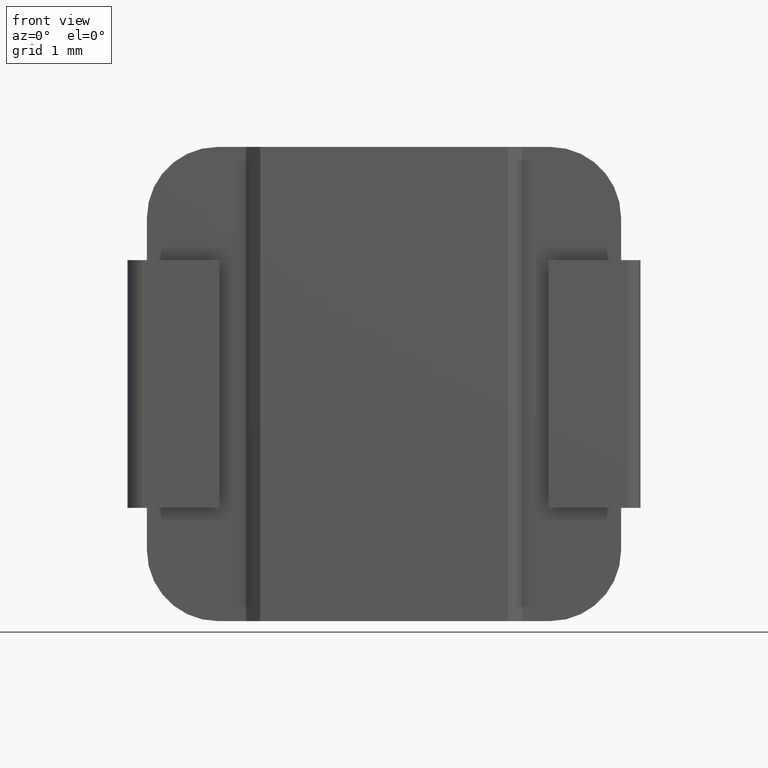
[diagram: clean part render]
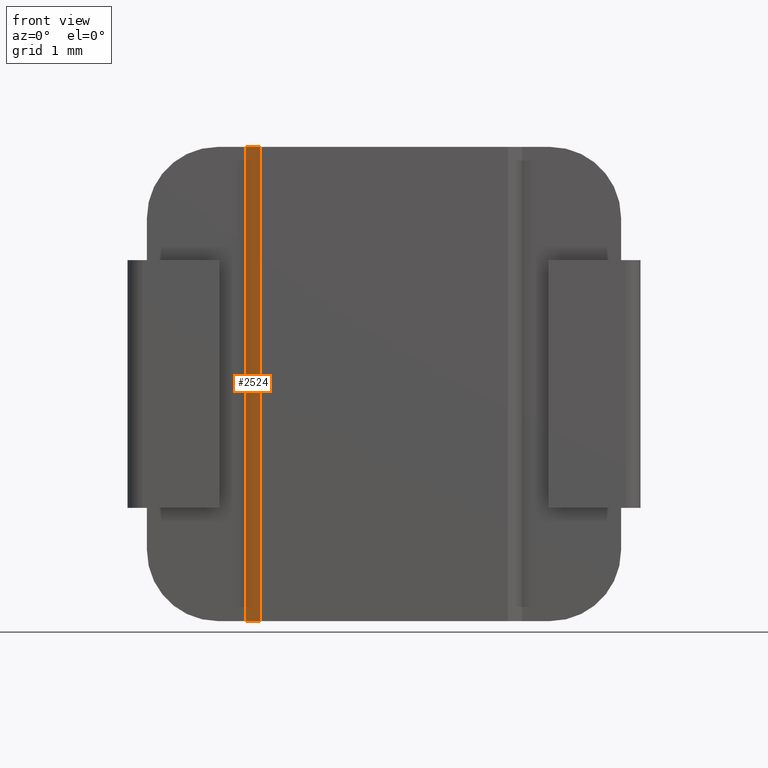
[diagram: same view with one face highlighted and labeled with its STEP entity id]
A machine part, front view. The second image highlights one B-rep face of the part: STEP entity #2524.
In plain terms, the highlighted planar face has unit normal (0.6, 0.8, 0).
Its self-contained STEP definition (entity closure, byte-faithful):
#43 = EDGE_CURVE ( 'NONE', #5472, #4189, #1957, .T. ) ;
#659 = ORIENTED_EDGE ( 'NONE', *, *, #2801, .F. ) ;
#1151 = LINE ( 'NONE', #6232, #1495 ) ;
#1166 = DIRECTION ( 'NONE',  ( -0.0000000000000000000, -0.0000000000000000000, 1.000000000000000000 ) ) ;
#1264 = FACE_OUTER_BOUND ( 'NONE', #4952, .T. ) ;
#1408 = CARTESIAN_POINT ( 'NONE',  ( -1.949999999999999289, 0.1499999999999999667, 3.349999999999999645 ) ) ;
#1495 = VECTOR ( 'NONE', #2049, 999.9999999999998863 ) ;
#1824 = CARTESIAN_POINT ( 'NONE',  ( -1.949999999999999289, 0.1499999999999999667, -3.350000000000001421 ) ) ;
#1957 = LINE ( 'NONE', #4856, #2454 ) ;
#2049 = DIRECTION ( 'NONE',  ( -0.7999999999999998224, 0.6000000000000001998, -0.0000000000000000000 ) ) ;
#2397 = VECTOR ( 'NONE', #6000, 1000.000000000000000 ) ;
#2454 = VECTOR ( 'NONE', #1166, 1000.000000000000000 ) ;
#2524 = ADVANCED_FACE ( 'NONE', ( #1264 ), #6574, .F. ) ;
#2772 = LINE ( 'NONE', #1408, #3329 ) ;
#2801 = EDGE_CURVE ( 'NONE', #4949, #5472, #1151, .T. ) ;
#2883 = DIRECTION ( 'NONE',  ( 0.6000000000000000888, 0.7999999999999999334, 0.0000000000000000000 ) ) ;
#3108 = EDGE_CURVE ( 'NONE', #4949, #5188, #4102, .T. ) ;
#3329 = VECTOR ( 'NONE', #5221, 999.9999999999998863 ) ;
#3424 = CARTESIAN_POINT ( 'NONE',  ( -1.749999999999999334, 0.0000000000000000000, 3.349999999999999645 ) ) ;
#4102 = LINE ( 'NONE', #6566, #2397 ) ;
#4178 = ORIENTED_EDGE ( 'NONE', *, *, #43, .F. ) ;
#4189 = VERTEX_POINT ( 'NONE', #5589 ) ;
#4715 = CARTESIAN_POINT ( 'NONE',  ( -1.749999999999999334, 0.0000000000000000000, -3.350000000000000089 ) ) ;
#4856 = CARTESIAN_POINT ( 'NONE',  ( -1.949999999999999289, 0.1499999999999999667, -3.350000000000001421 ) ) ;
#4949 = VERTEX_POINT ( 'NONE', #4715 ) ;
#4952 = EDGE_LOOP ( 'NONE', ( #4178, #659, #6722, #6487 ) ) ;
#5071 = CARTESIAN_POINT ( 'NONE',  ( -1.949999999999999289, 0.1499999999999999667, -3.350000000000001421 ) ) ;
#5188 = VERTEX_POINT ( 'NONE', #3424 ) ;
#5221 = DIRECTION ( 'NONE',  ( -0.7999999999999998224, 0.6000000000000001998, -0.0000000000000000000 ) ) ;
#5472 = VERTEX_POINT ( 'NONE', #5071 ) ;
#5589 = CARTESIAN_POINT ( 'NONE',  ( -1.949999999999999289, 0.1499999999999999667, 3.349999999999999645 ) ) ;
#5988 = AXIS2_PLACEMENT_3D ( 'NONE', #1824, #2883, #6507 ) ;
#6000 = DIRECTION ( 'NONE',  ( -0.0000000000000000000, -0.0000000000000000000, 1.000000000000000000 ) ) ;
#6097 = EDGE_CURVE ( 'NONE', #5188, #4189, #2772, .T. ) ;
#6232 = CARTESIAN_POINT ( 'NONE',  ( -1.949999999999999289, 0.1499999999999999667, -3.350000000000001421 ) ) ;
#6487 = ORIENTED_EDGE ( 'NONE', *, *, #6097, .T. ) ;
#6507 = DIRECTION ( 'NONE',  ( -0.7999999999999999334, 0.6000000000000000888, 0.0000000000000000000 ) ) ;
#6566 = CARTESIAN_POINT ( 'NONE',  ( -1.749999999999999334, 0.0000000000000000000, -3.350000000000001421 ) ) ;
#6574 = PLANE ( 'NONE',  #5988 ) ;
#6722 = ORIENTED_EDGE ( 'NONE', *, *, #3108, .T. ) ;